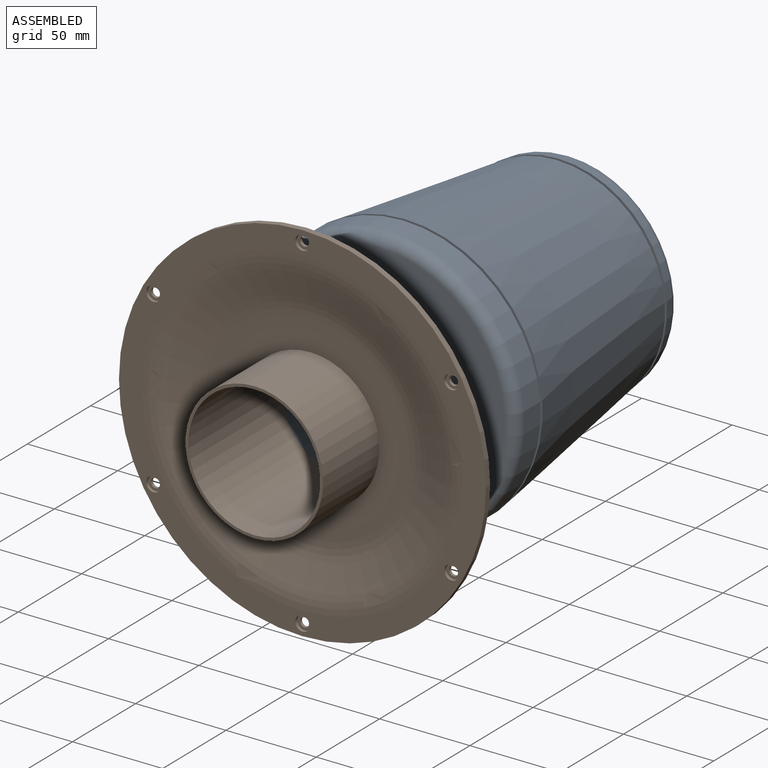
[diagram: assembled view]
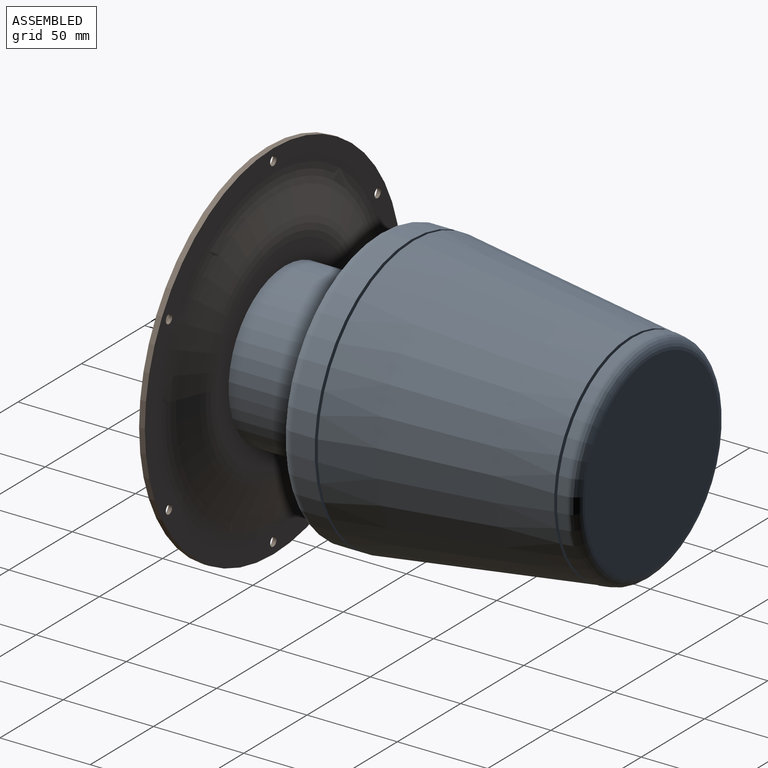
[diagram: assembled view, second angle]
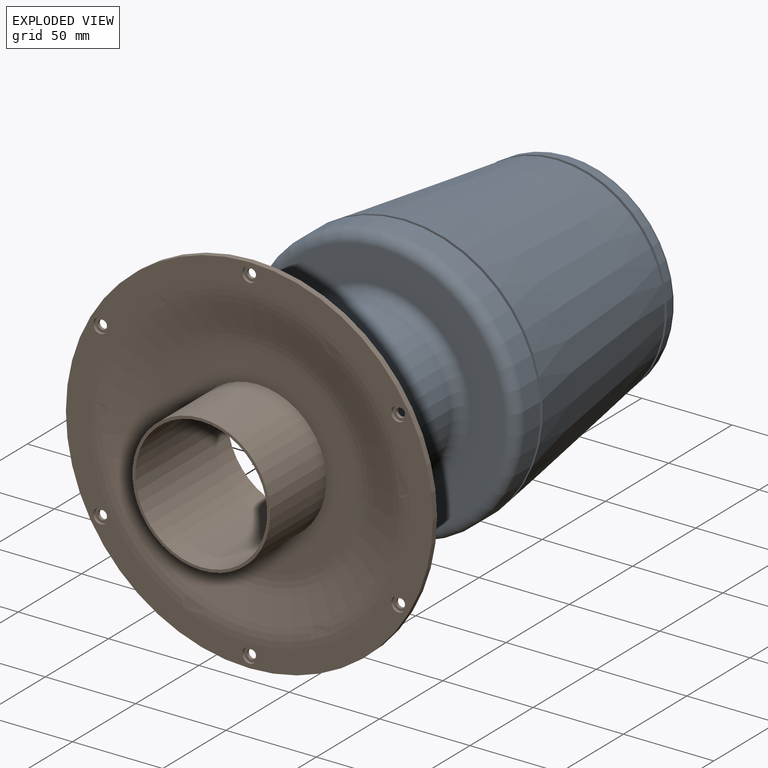
[diagram: exploded view]
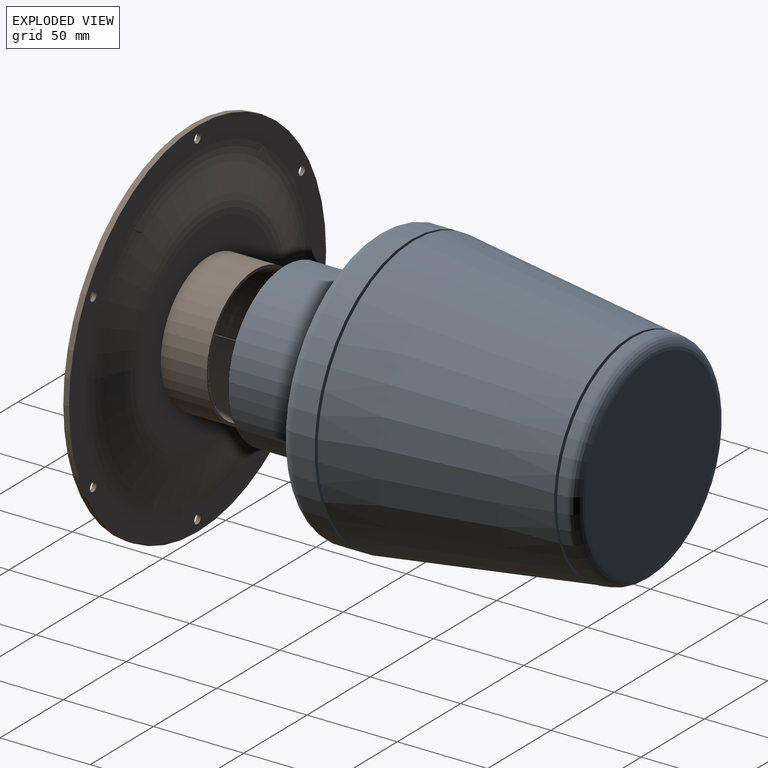
[diagram: exploded view, second angle]
ASSEMBLY  parts=2 mates=2
PART A: 27 faces, bbox 165x203.2x165 mm
  f0: plane 110.19x110.19mm, normal (0,1,0), area 1429.3mm2, adj f5,f25
  f1: torus R=50.8mm, axis (0,-1,0), area 2930.4mm2, adj f2,f11
  f2: cylinder r=44.45mm len=88.9mm, axis (0,-1,0), area 12414.3mm2, adj f1,f3
  f3: plane 88.9x88.9mm, normal (0,-1,0), area 1646.8mm2, adj f2,f4
  f4: cylinder r=38.1mm len=76.2mm, axis (0,-1,0), area 10640.9mm2, adj f3,f5
  f5: torus R=50.8mm, axis (0,-1,0), area 5354.1mm2, adj f0,f4
  f6: torus R=66.67mm, axis (0,-1,0), area 2152.7mm2, adj f7,f18
  f7: cylinder r=69.85mm len=139.7mm, axis (0,-1,0), area 4180.3mm2, adj f6,f8
  f8: plane 152.4x152.4mm, normal (0,1,0), area 2913.6mm2, adj f7,f9
  f9: cylinder r=76.2mm len=152.4mm, axis (0,-1,0), area 6080.5mm2, adj f8,f10
  f10: torus R=69.85mm, axis (0,-1,0), area 4631mm2, adj f9,f11
  f11: plane 139.7x139.7mm, normal (0,-1,0), area 7220.6mm2, adj f1,f10
  f12: cone r=66.67mm half-angle=5.3deg, axis (0,-1,0), area 667.2mm2, adj f13,f18
  f13: plane 152.4x152.4mm, normal (0,-1,0), area 4336.8mm2, adj f12,f14
  f14: cone r=76.2mm half-angle=7.7deg, axis (0,-1,0), area 51717.6mm2, adj f13,f15
  f15: plane 120.22x120.22mm, normal (0,1,0), area 1692.6mm2, adj f14,f16
  f16: cone r=55.45mm half-angle=5.3deg, axis (0,-1,0), area 609.8mm2, adj f15,f17
  f17: cone r=55.29mm half-angle=7.5deg, axis (0,-1,0), area 2399.5mm2, adj f16,f19
  f18: cylinder r=66.67mm len=133.35mm, axis (0,-1,0), area 5320.4mm2, adj f6,f12
  f19: torus R=53.16mm, axis (0,-1,0), area 1160.9mm2, adj f17,f20
  f20: cone r=56.91mm half-angle=7.5deg, axis (0,-1,0), area 1629.8mm2, adj f19,f21
  f21: plane 120.22x120.22mm, normal (0,-1,0), area 1177.2mm2, adj f20,f22
  f22: cone r=60.11mm half-angle=7.5deg, axis (0,-1,0), area 1877.4mm2, adj f21,f23
  f23: torus R=53.16mm, axis (0,-1,0), area 3276.2mm2, adj f22,f24
  f24: plane 106.33x106.33mm, normal (0,1,0), area 8879.7mm2, adj f23
  f25: cone r=55.1mm half-angle=5.3deg, axis (0,-1,0), area 43710mm2, adj f0,f26
  f26: plane 83.74x83.74mm, normal (0,-1,0), area 5507.6mm2, adj f25
PART B: 34 faces, bbox 203.2x73x203.2 mm
  f0: torus R=55.17mm, axis (0,-1,0), area 3768.4mm2, adj f1,f15
  f1: cone r=65.03mm half-angle=75deg, axis (0,-1,0), area 6564mm2, adj f0,f2
  f2: torus R=88.9mm, axis (0,-1,0), area 5260.8mm2, adj f1,f3
  f3: plane 203.2x203.2mm, normal (0,1,0), area 7482.7mm2, adj f2,f4,f16,f19,f22,f25,f28,f31
  f4: cylinder r=101.6mm len=203.2mm, axis (0,-1,0), area 2026.8mm2, adj f3,f5
  f5: plane 203.2x203.2mm, normal (0,-1,0), area 7299mm2, adj f4,f6,f18,f21,f24,f27,f30,f33
  f6: torus R=88.9mm, axis (0,-1,0), area 5260.8mm2, adj f5,f7
  f7: cone r=79.04mm half-angle=75deg, axis (0,-1,0), area 6564mm2, adj f6,f8
  f8: torus R=55.17mm, axis (0,-1,0), area 3768.4mm2, adj f7,f9
  f9: plane 110.34x110.34mm, normal (0,-1,0), area 5001.6mm2, adj f8,f10
  f10: cylinder r=38.1mm len=76.2mm, axis (0,-1,0), area 10640.9mm2, adj f9,f11
  f11: plane 76.2x76.2mm, normal (0,-1,0), area 372.1mm2, adj f10,f12
  f12: cylinder r=36.51mm len=73.03mm, axis (0,-1,0), area 16753mm2, adj f11,f13
  f13: plane 76.2x76.2mm, normal (0,1,0), area 372.1mm2, adj f12,f14
  f14: cylinder r=38.1mm len=76.2mm, axis (0,-1,0), area 6080.5mm2, adj f13,f15
  f15: plane 110.34x110.34mm, normal (0,1,0), area 5001.6mm2, adj f0,f14
  f16: cylinder r=2.5mm len=5mm, axis (0,-1,0), area 24.9mm2, adj f3,f17
  f17: plane 8x8mm, normal (0,-1,0), area 30.6mm2, adj f16,f18
  f18: cylinder r=4mm len=8mm, axis (0,-1,0), area 39.9mm2, adj f5,f17
  f19: cylinder r=2.5mm len=5mm, axis (0,-1,0), area 24.9mm2, adj f3,f20
  f20: plane 8x8mm, normal (0,-1,0), area 30.6mm2, adj f19,f21
  f21: cylinder r=4mm len=8mm, axis (0,-1,0), area 39.9mm2, adj f5,f20
  f22: cylinder r=2.5mm len=5mm, axis (0,-1,0), area 24.9mm2, adj f3,f23
  f23: plane 8x8mm, normal (0,-1,0), area 30.6mm2, adj f22,f24
  f24: cylinder r=4mm len=8mm, axis (0,-1,0), area 39.9mm2, adj f5,f23
  f25: cylinder r=2.5mm len=5mm, axis (0,-1,0), area 24.9mm2, adj f3,f26
  f26: plane 8x8mm, normal (0,-1,0), area 30.6mm2, adj f25,f27
  f27: cylinder r=4mm len=8mm, axis (0,-1,0), area 39.9mm2, adj f5,f26
  f28: cylinder r=2.5mm len=5mm, axis (0,-1,0), area 24.9mm2, adj f3,f29
  f29: plane 8x8mm, normal (0,-1,0), area 30.6mm2, adj f28,f30
  f30: cylinder r=4mm len=8mm, axis (0,-1,0), area 39.9mm2, adj f5,f29
  f31: cylinder r=2.5mm len=5mm, axis (0,-1,0), area 24.9mm2, adj f3,f32
  f32: plane 8x8mm, normal (0,-1,0), area 30.6mm2, adj f31,f33
  f33: cylinder r=4mm len=8mm, axis (0,-1,0), area 39.9mm2, adj f5,f32
PLACE A t=(-122.41,-47.98,17.37)mm
PLACE B t=(-122.41,-47.98,17.37)mm
MATE slider A.f1 <-> B.f0  axis (0,-1,0) through (-122.41,-47.98,17.37)mm
MATE fastened A.f1 <-> B.f0  axis (0,-1,0) through (-122.41,-47.98,17.37)mm
